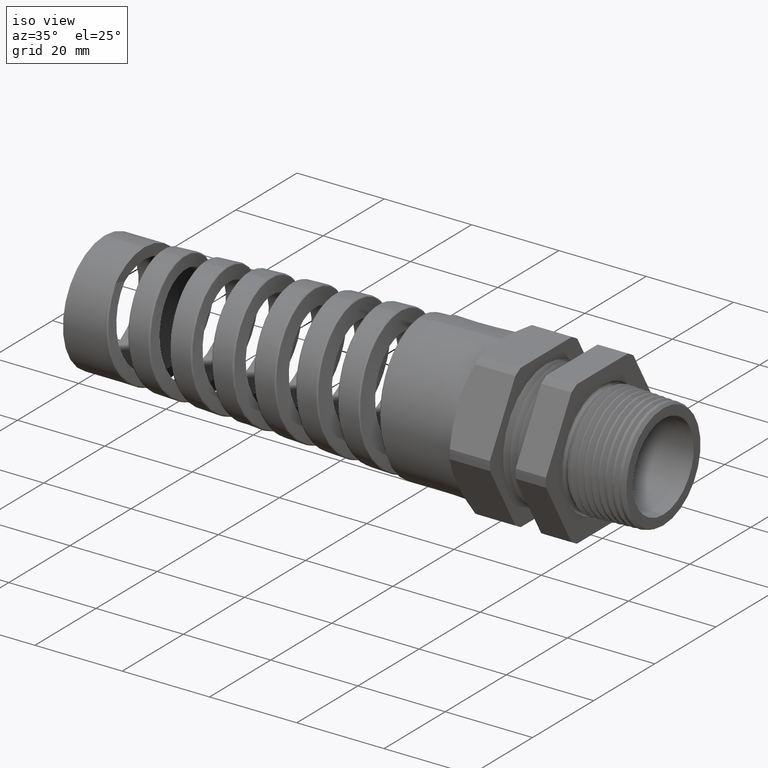
[diagram: clean part render]
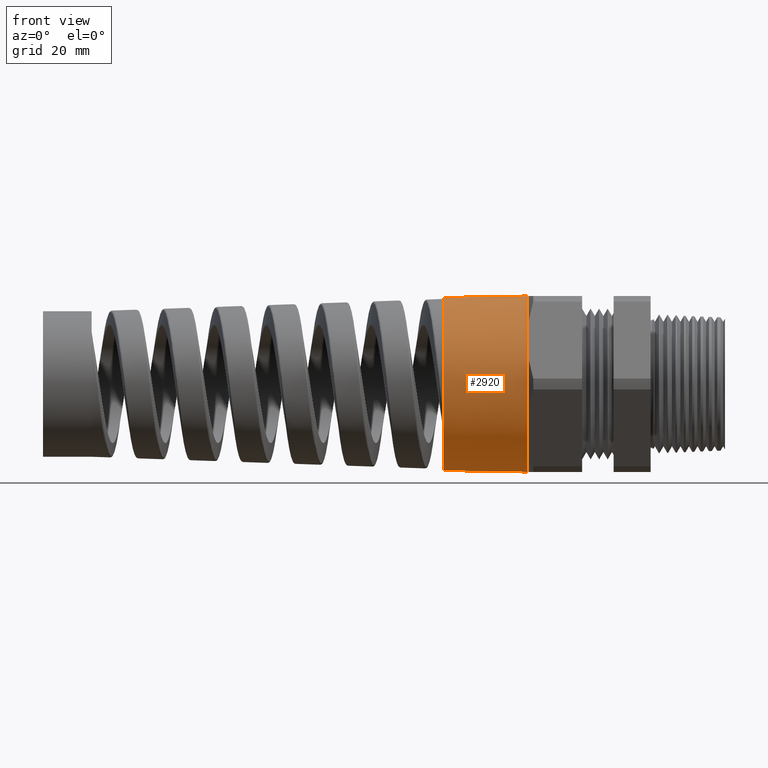
[diagram: tour spotlight — one face highlighted and labeled with its STEP entity id]
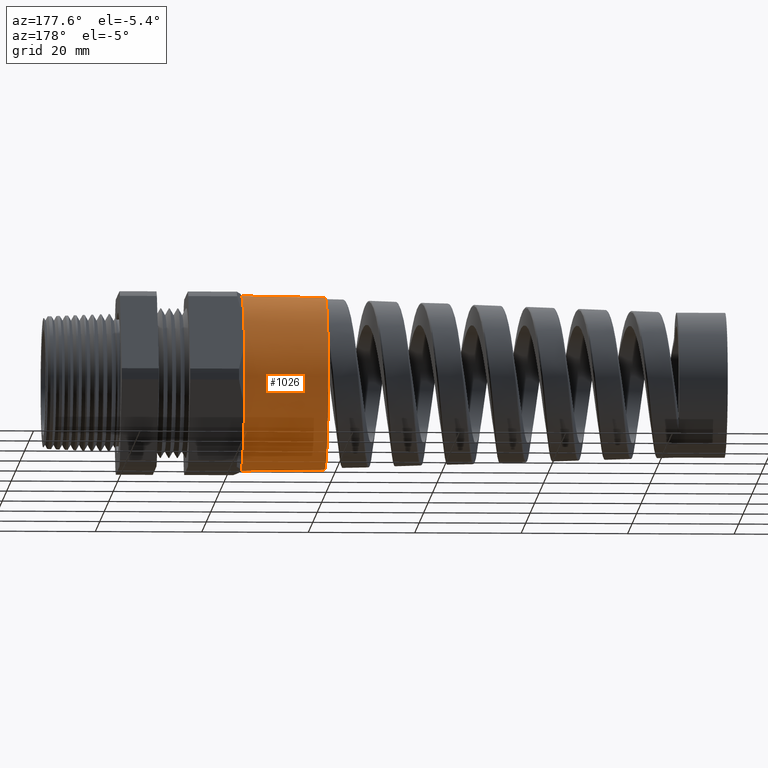
[diagram: tour spotlight — one face highlighted and labeled with its STEP entity id]
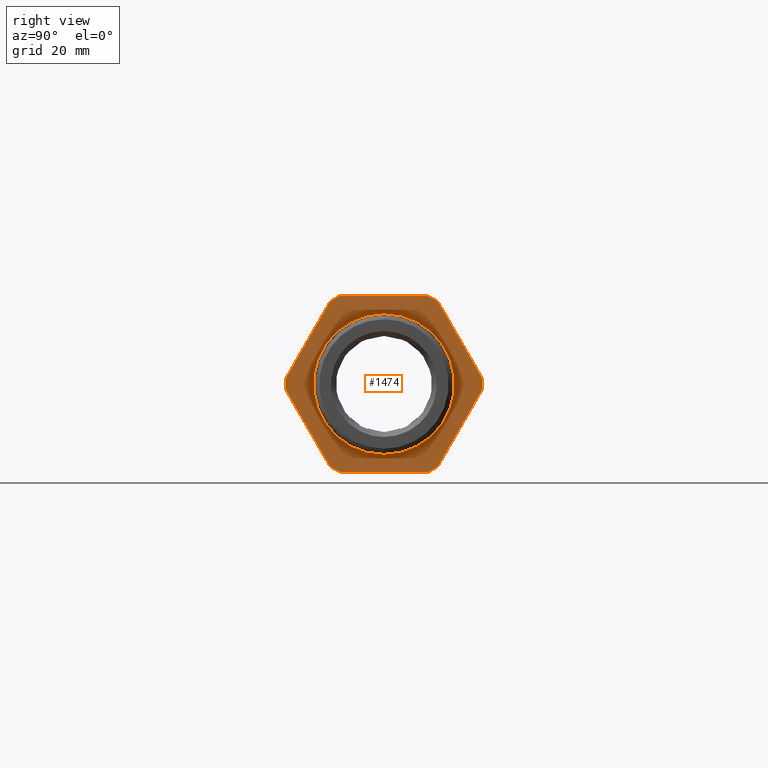
[diagram: tour spotlight — one face highlighted and labeled with its STEP entity id]
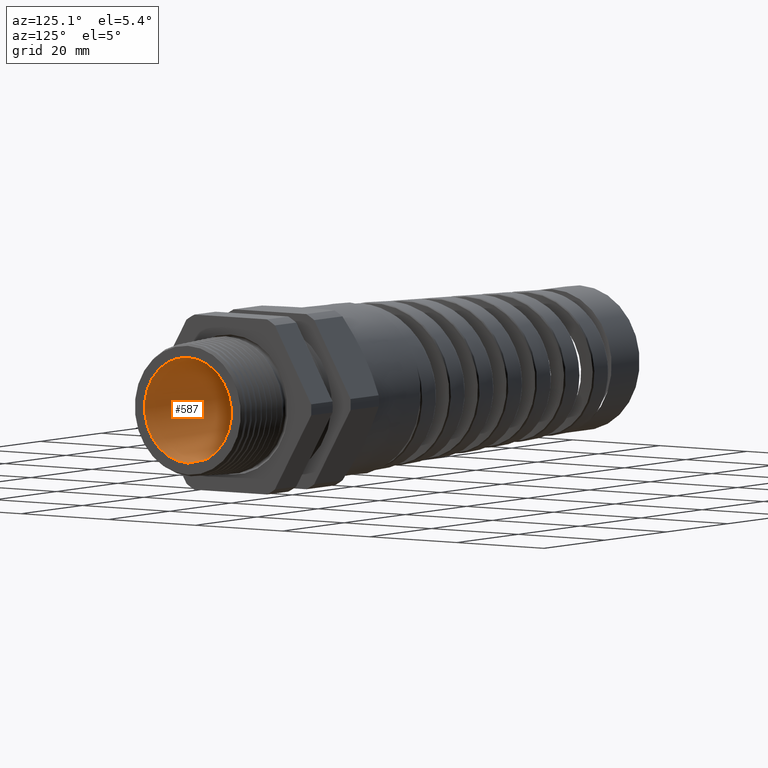
[diagram: tour spotlight — one face highlighted and labeled with its STEP entity id]
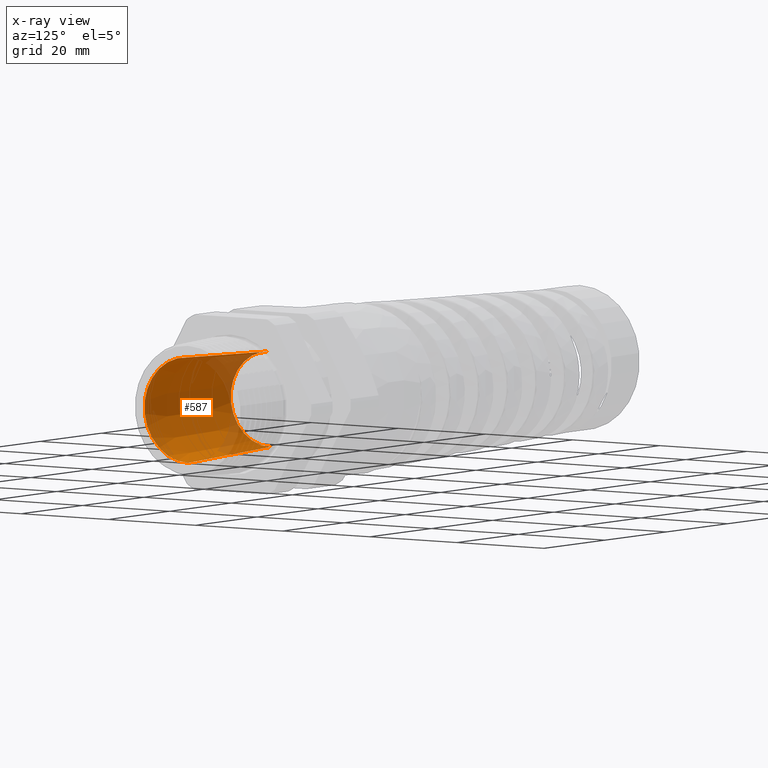
[diagram: x-ray of the same camera — body ghosted, this tour face saturated]
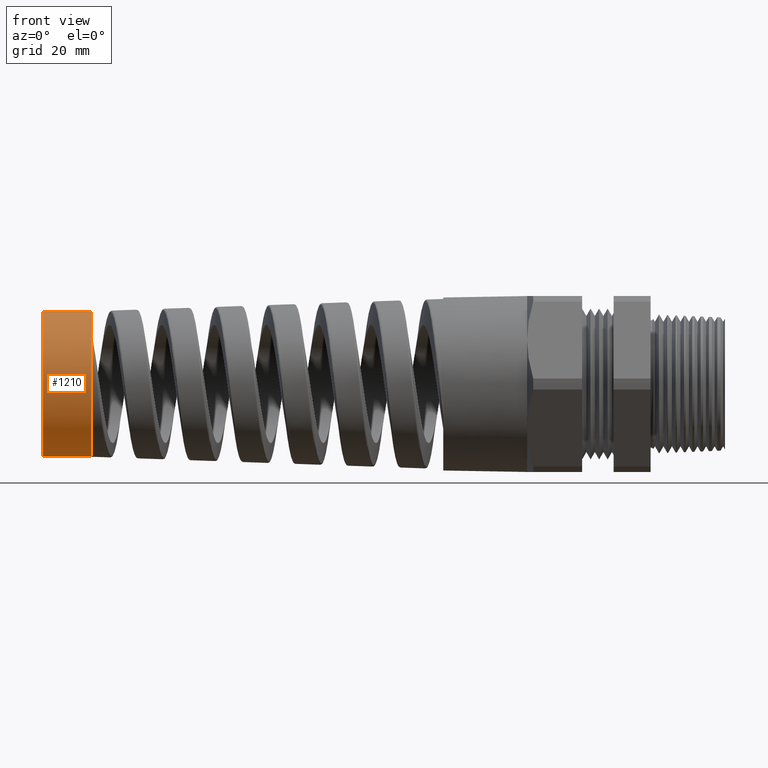
[diagram: tour spotlight — one face highlighted and labeled with its STEP entity id]
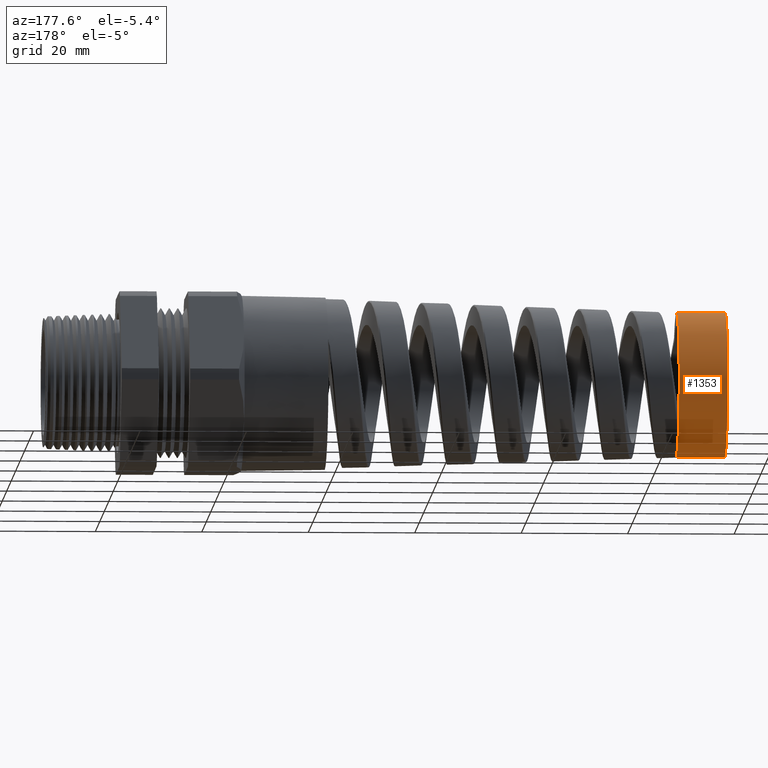
[diagram: tour spotlight — one face highlighted and labeled with its STEP entity id]
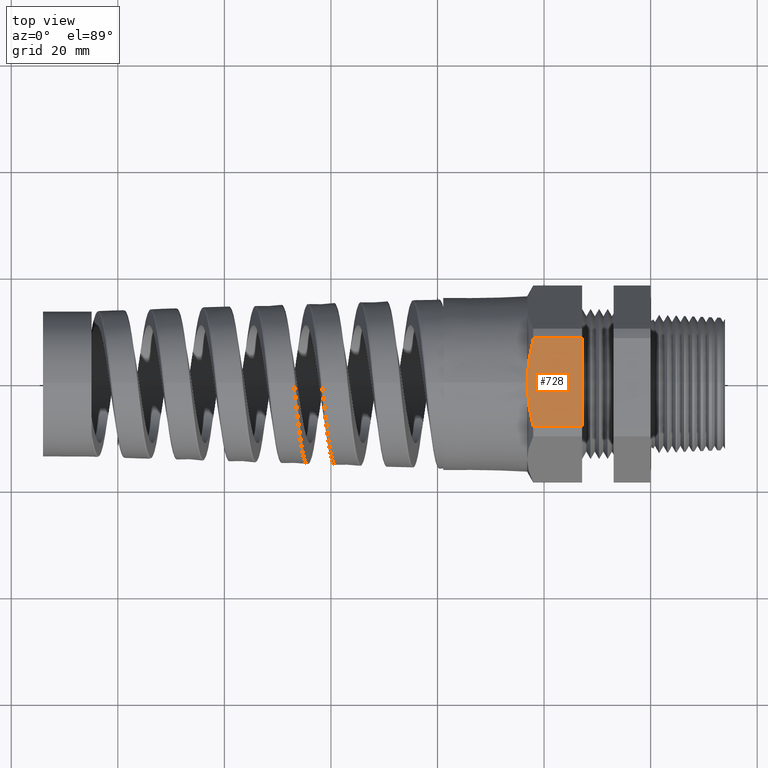
[diagram: tour spotlight — one face highlighted and labeled with its STEP entity id]
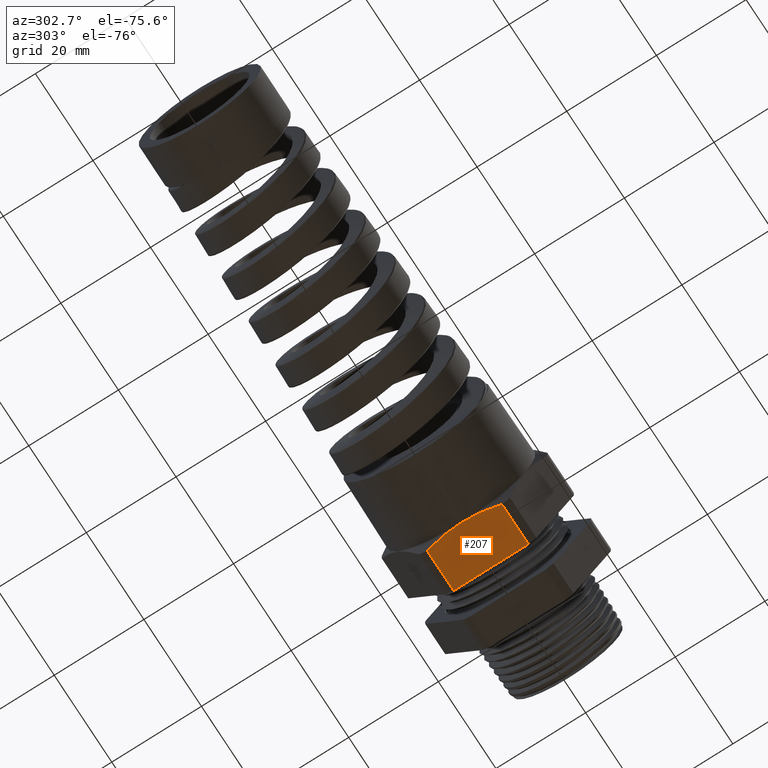
[diagram: tour spotlight — one face highlighted and labeled with its STEP entity id]
A machine part: a face-by-face anatomy tour. The part has 163 B-rep faces; the first image is the clean iso view, then the 8 largest visible faces are spotlighted one at a time (largest first), each with its STEP entity span.

Face 1 — front view, entity #2920. In plain terms, the highlighted conical surface has half-angle 1 deg.
Definition (entity closure, byte-faithful):
#2490 = VERTEX_POINT ( 'NONE', #9889 ) ;
#2615 = VERTEX_POINT ( 'NONE', #9962 ) ;
#2668 = EDGE_LOOP ( 'NONE', ( #2931, #2923, #2912, #2853, #2924, #2911 ) ) ;
#2850 = EDGE_CURVE ( 'NONE', #2615, #2910, #10194, .T. ) ;
#2853 = ORIENTED_EDGE ( 'NONE', *, *, #2928, .T. ) ;
#2855 = VERTEX_POINT ( 'NONE', #10189 ) ;
#2895 = VERTEX_POINT ( 'NONE', #10201 ) ;
#2897 = EDGE_CURVE ( 'NONE', #2910, #2490, #10272, .T. ) ;
#2903 = EDGE_CURVE ( 'NONE', #2855, #2490, #10259, .T. ) ;
#2906 = VERTEX_POINT ( 'NONE', #10254 ) ;
#2910 = VERTEX_POINT ( 'NONE', #10248 ) ;
#2911 = ORIENTED_EDGE ( 'NONE', *, *, #2897, .F. ) ;
#2912 = ORIENTED_EDGE ( 'NONE', *, *, #2916, .T. ) ;
#2916 = EDGE_CURVE ( 'NONE', #2895, #2906, #10246, .T. ) ;
#2920 = ADVANCED_FACE ( 'NONE', ( #10299 ), #10297, .T. ) ;
#2921 = EDGE_CURVE ( 'NONE', #2615, #2895, #10293, .T. ) ;
#2923 = ORIENTED_EDGE ( 'NONE', *, *, #2921, .T. ) ;
#2924 = ORIENTED_EDGE ( 'NONE', *, *, #2903, .T. ) ;
#2928 = EDGE_CURVE ( 'NONE', #2906, #2855, #10333, .T. ) ;
#2931 = ORIENTED_EDGE ( 'NONE', *, *, #2850, .F. ) ;
#9889 = CARTESIAN_POINT ( 'NONE',  ( -0.9125000000000002000, 0.0000000000000000000, 0.6499999999999998000 ) ) ;
#9962 = CARTESIAN_POINT ( 'NONE',  ( -1.532120000000000100, -7.893978312288564000E-017, -0.6391844926691776500 ) ) ;
#10189 = CARTESIAN_POINT ( 'NONE',  ( -0.9125000000000002000, -0.5629165124598850500, 0.3249999999999999600 ) ) ;
#10190 = DIRECTION ( 'NONE',  ( 0.0000000000000000000, 0.0000000000000000000, 1.000000000000000000 ) ) ;
#10191 = DIRECTION ( 'NONE',  ( -1.000000000000000000, 0.0000000000000000000, 0.0000000000000000000 ) ) ;
#10192 = CARTESIAN_POINT ( 'NONE',  ( -1.532120000000000100, 0.0000000000000000000, 0.0000000000000000000 ) ) ;
#10193 = AXIS2_PLACEMENT_3D ( 'NONE', #10192, #10191, #10190 ) ;
#10194 = CIRCLE ( 'NONE', #10193, 0.6391844926691776500 ) ;
#10201 = CARTESIAN_POINT ( 'NONE',  ( -0.9125000000000002000, 0.0000000000000000000, -0.6500000000000000200 ) ) ;
#10243 = DIRECTION ( 'NONE',  ( -1.000000000000000000, 0.0000000000000000000, 0.0000000000000000000 ) ) ;
#10244 = CARTESIAN_POINT ( 'NONE',  ( -0.9125000000000002000, 0.0000000000000000000, 0.0000000000000000000 ) ) ;
#10245 = AXIS2_PLACEMENT_3D ( 'NONE', #10244, #10243, #10305 ) ;
#10246 = CIRCLE ( 'NONE', #10245, 0.6499999999999998000 ) ;
#10248 = CARTESIAN_POINT ( 'NONE',  ( -1.532120000000000100, 0.0000000000000000000, 0.6391844926691776500 ) ) ;
#10254 = CARTESIAN_POINT ( 'NONE',  ( -0.9125000000000002000, -0.5629165124598849400, -0.3250000000000001800 ) ) ;
#10255 = DIRECTION ( 'NONE',  ( 0.0000000000000000000, 0.0000000000000000000, 1.000000000000000000 ) ) ;
#10256 = DIRECTION ( 'NONE',  ( -1.000000000000000000, 0.0000000000000000000, 0.0000000000000000000 ) ) ;
#10257 = CARTESIAN_POINT ( 'NONE',  ( -0.9125000000000002000, 0.0000000000000000000, 0.0000000000000000000 ) ) ;
#10258 = AXIS2_PLACEMENT_3D ( 'NONE', #10257, #10256, #10255 ) ;
#10259 = CIRCLE ( 'NONE', #10258, 0.6499999999999998000 ) ;
#10269 = DIRECTION ( 'NONE',  ( 0.9998476951563912700, 0.0000000000000000000, 0.01745240643728355000 ) ) ;
#10270 = VECTOR ( 'NONE', #10269, 39.37007874015748100 ) ;
#10271 = CARTESIAN_POINT ( 'NONE',  ( -0.9125000000000002000, 0.0000000000000000000, 0.6499999999999999100 ) ) ;
#10272 = LINE ( 'NONE', #10271, #10270 ) ;
#10290 = DIRECTION ( 'NONE',  ( 0.9998476951563912700, -2.137303368083796300E-018, -0.01745240643728355000 ) ) ;
#10291 = VECTOR ( 'NONE', #10290, 39.37007874015748100 ) ;
#10292 = CARTESIAN_POINT ( 'NONE',  ( -0.9125000000000002000, -7.960204194457794200E-017, -0.6499999999999999100 ) ) ;
#10293 = LINE ( 'NONE', #10292, #10291 ) ;
#10294 = DIRECTION ( 'NONE',  ( 0.0000000000000000000, 0.0000000000000000000, 1.000000000000000000 ) ) ;
#10295 = DIRECTION ( 'NONE',  ( 1.000000000000000000, 0.0000000000000000000, 0.0000000000000000000 ) ) ;
#10296 = AXIS2_PLACEMENT_3D ( 'NONE', #10298, #10295, #10294 ) ;
#10297 = CONICAL_SURFACE ( 'NONE', #10296, 0.6499999999999999100, 0.01745329251994333400 ) ;
#10298 = CARTESIAN_POINT ( 'NONE',  ( -0.9125000000000002000, 0.0000000000000000000, 0.0000000000000000000 ) ) ;
#10299 = FACE_OUTER_BOUND ( 'NONE', #2668, .T. ) ;
#10305 = DIRECTION ( 'NONE',  ( 0.0000000000000000000, 0.0000000000000000000, 1.000000000000000000 ) ) ;
#10329 = DIRECTION ( 'NONE',  ( 0.0000000000000000000, 0.0000000000000000000, 1.000000000000000000 ) ) ;
#10330 = DIRECTION ( 'NONE',  ( -1.000000000000000000, 0.0000000000000000000, 0.0000000000000000000 ) ) ;
#10331 = CARTESIAN_POINT ( 'NONE',  ( -0.9125000000000002000, 0.0000000000000000000, 0.0000000000000000000 ) ) ;
#10332 = AXIS2_PLACEMENT_3D ( 'NONE', #10331, #10330, #10329 ) ;
#10333 = CIRCLE ( 'NONE', #10332, 0.6499999999999998000 ) ;

Face 2 — auxiliary view, entity #1026. In plain terms, the highlighted conical surface has half-angle 1 deg.
Definition (entity closure, byte-faithful):
#196 = EDGE_CURVE ( 'NONE', #2910, #2615, #1749, .T. ) ;
#772 = VERTEX_POINT ( 'NONE', #2316 ) ;
#1009 = ORIENTED_EDGE ( 'NONE', *, *, #196, .F. ) ;
#1011 = ORIENTED_EDGE ( 'NONE', *, *, #2921, .F. ) ;
#1016 = ORIENTED_EDGE ( 'NONE', *, *, #1636, .T. ) ;
#1022 = ORIENTED_EDGE ( 'NONE', *, *, #2897, .T. ) ;
#1023 = ORIENTED_EDGE ( 'NONE', *, *, #1262, .T. ) ;
#1024 = ORIENTED_EDGE ( 'NONE', *, *, #1271, .T. ) ;
#1025 = EDGE_LOOP ( 'NONE', ( #1011, #1009, #1022, #1023, #1024, #1016 ) ) ;
#1026 = ADVANCED_FACE ( 'NONE', ( #3773 ), #3826, .T. ) ;
#1262 = EDGE_CURVE ( 'NONE', #2490, #13829, #9331, .T. ) ;
#1271 = EDGE_CURVE ( 'NONE', #13829, #772, #9317, .T. ) ;
#1636 = EDGE_CURVE ( 'NONE', #772, #2895, #9625, .T. ) ;
#1745 = DIRECTION ( 'NONE',  ( 0.0000000000000000000, 0.0000000000000000000, 1.000000000000000000 ) ) ;
#1746 = DIRECTION ( 'NONE',  ( -1.000000000000000000, 0.0000000000000000000, 0.0000000000000000000 ) ) ;
#1747 = CARTESIAN_POINT ( 'NONE',  ( -1.532120000000000100, 0.0000000000000000000, 0.0000000000000000000 ) ) ;
#1748 = AXIS2_PLACEMENT_3D ( 'NONE', #1747, #1746, #1745 ) ;
#1749 = CIRCLE ( 'NONE', #1748, 0.6391844926691776500 ) ;
#2316 = CARTESIAN_POINT ( 'NONE',  ( -0.9125000000000002000, 0.5629165124598850500, -0.3250000000000000100 ) ) ;
#2490 = VERTEX_POINT ( 'NONE', #9889 ) ;
#2615 = VERTEX_POINT ( 'NONE', #9962 ) ;
#2895 = VERTEX_POINT ( 'NONE', #10201 ) ;
#2897 = EDGE_CURVE ( 'NONE', #2910, #2490, #10272, .T. ) ;
#2910 = VERTEX_POINT ( 'NONE', #10248 ) ;
#2921 = EDGE_CURVE ( 'NONE', #2615, #2895, #10293, .T. ) ;
#3773 = FACE_OUTER_BOUND ( 'NONE', #1025, .T. ) ;
#3822 = DIRECTION ( 'NONE',  ( 0.0000000000000000000, 0.0000000000000000000, 1.000000000000000000 ) ) ;
#3823 = DIRECTION ( 'NONE',  ( 1.000000000000000000, 0.0000000000000000000, 0.0000000000000000000 ) ) ;
#3824 = CARTESIAN_POINT ( 'NONE',  ( -0.9125000000000002000, 0.0000000000000000000, 0.0000000000000000000 ) ) ;
#3825 = AXIS2_PLACEMENT_3D ( 'NONE', #3824, #3823, #3822 ) ;
#3826 = CONICAL_SURFACE ( 'NONE', #3825, 0.6499999999999999100, 0.01745329251994333400 ) ;
#9249 = CARTESIAN_POINT ( 'NONE',  ( -0.9125000000000002000, 0.0000000000000000000, 0.0000000000000000000 ) ) ;
#9313 = DIRECTION ( 'NONE',  ( 0.0000000000000000000, 0.0000000000000000000, 1.000000000000000000 ) ) ;
#9314 = DIRECTION ( 'NONE',  ( -1.000000000000000000, 0.0000000000000000000, 0.0000000000000000000 ) ) ;
#9315 = CARTESIAN_POINT ( 'NONE',  ( -0.9125000000000002000, 0.0000000000000000000, 0.0000000000000000000 ) ) ;
#9316 = AXIS2_PLACEMENT_3D ( 'NONE', #9315, #9314, #9313 ) ;
#9317 = CIRCLE ( 'NONE', #9316, 0.6499999999999998000 ) ;
#9327 = DIRECTION ( 'NONE',  ( 0.0000000000000000000, 0.0000000000000000000, 1.000000000000000000 ) ) ;
#9328 = DIRECTION ( 'NONE',  ( -1.000000000000000000, 0.0000000000000000000, 0.0000000000000000000 ) ) ;
#9329 = AXIS2_PLACEMENT_3D ( 'NONE', #9249, #9328, #9327 ) ;
#9331 = CIRCLE ( 'NONE', #9329, 0.6499999999999998000 ) ;
#9622 = DIRECTION ( 'NONE',  ( -1.000000000000000000, 0.0000000000000000000, 0.0000000000000000000 ) ) ;
#9624 = AXIS2_PLACEMENT_3D ( 'NONE', #9635, #9622, #9751 ) ;
#9625 = CIRCLE ( 'NONE', #9624, 0.6499999999999998000 ) ;
#9635 = CARTESIAN_POINT ( 'NONE',  ( -0.9125000000000002000, 0.0000000000000000000, 0.0000000000000000000 ) ) ;
#9751 = DIRECTION ( 'NONE',  ( 0.0000000000000000000, 0.0000000000000000000, 1.000000000000000000 ) ) ;
#9889 = CARTESIAN_POINT ( 'NONE',  ( -0.9125000000000002000, 0.0000000000000000000, 0.6499999999999998000 ) ) ;
#9962 = CARTESIAN_POINT ( 'NONE',  ( -1.532120000000000100, -7.893978312288564000E-017, -0.6391844926691776500 ) ) ;
#10201 = CARTESIAN_POINT ( 'NONE',  ( -0.9125000000000002000, 0.0000000000000000000, -0.6500000000000000200 ) ) ;
#10248 = CARTESIAN_POINT ( 'NONE',  ( -1.532120000000000100, 0.0000000000000000000, 0.6391844926691776500 ) ) ;
#10269 = DIRECTION ( 'NONE',  ( 0.9998476951563912700, 0.0000000000000000000, 0.01745240643728355000 ) ) ;
#10270 = VECTOR ( 'NONE', #10269, 39.37007874015748100 ) ;
#10271 = CARTESIAN_POINT ( 'NONE',  ( -0.9125000000000002000, 0.0000000000000000000, 0.6499999999999999100 ) ) ;
#10272 = LINE ( 'NONE', #10271, #10270 ) ;
#10290 = DIRECTION ( 'NONE',  ( 0.9998476951563912700, -2.137303368083796300E-018, -0.01745240643728355000 ) ) ;
#10291 = VECTOR ( 'NONE', #10290, 39.37007874015748100 ) ;
#10292 = CARTESIAN_POINT ( 'NONE',  ( -0.9125000000000002000, -7.960204194457794200E-017, -0.6499999999999999100 ) ) ;
#10293 = LINE ( 'NONE', #10292, #10291 ) ;
#13227 = CARTESIAN_POINT ( 'NONE',  ( -0.9125000000000002000, 0.5629165124598849400, 0.3250000000000001800 ) ) ;
#13829 = VERTEX_POINT ( 'NONE', #13227 ) ;

Face 3 — right view, entity #1474. In plain terms, the highlighted planar face has unit normal (-1, 0, 0).
Definition (entity closure, byte-faithful):
#1474 = ADVANCED_FACE ( 'NONE', ( #9604, #9602 ), #9599, .F. ) ;
#1475 = EDGE_LOOP ( 'NONE', ( #1476, #1535, #1538, #1541, #1544, #1547, #1521, #1524, #1527, #1530, #1533, #1508 ) ) ;
#1476 = ORIENTED_EDGE ( 'NONE', *, *, #1477, .T. ) ;
#1477 = EDGE_CURVE ( 'NONE', #1478, #1534, #9588, .T. ) ;
#1478 = VERTEX_POINT ( 'NONE', #9582 ) ;
#1507 = VERTEX_POINT ( 'NONE', #9737 ) ;
#1508 = ORIENTED_EDGE ( 'NONE', *, *, #1509, .F. ) ;
#1509 = EDGE_CURVE ( 'NONE', #1478, #1507, #9733, .T. ) ;
#1510 = EDGE_LOOP ( 'NONE', ( #1511, #1513 ) ) ;
#1511 = ORIENTED_EDGE ( 'NONE', *, *, #1512, .F. ) ;
#1512 = EDGE_CURVE ( 'NONE', #2894, #2857, #9724, .T. ) ;
#1513 = ORIENTED_EDGE ( 'NONE', *, *, #2904, .F. ) ;
#1519 = EDGE_CURVE ( 'NONE', #1520, #1546, #9693, .T. ) ;
#1520 = VERTEX_POINT ( 'NONE', #9686 ) ;
#1521 = ORIENTED_EDGE ( 'NONE', *, *, #1522, .T. ) ;
#1522 = EDGE_CURVE ( 'NONE', #1520, #1523, #9808, .T. ) ;
#1523 = VERTEX_POINT ( 'NONE', #9803 ) ;
#1524 = ORIENTED_EDGE ( 'NONE', *, *, #1525, .F. ) ;
#1525 = EDGE_CURVE ( 'NONE', #1526, #1523, #9798, .T. ) ;
#1526 = VERTEX_POINT ( 'NONE', #9789 ) ;
#1527 = ORIENTED_EDGE ( 'NONE', *, *, #1528, .T. ) ;
#1528 = EDGE_CURVE ( 'NONE', #1526, #1529, #9785, .T. ) ;
#1529 = VERTEX_POINT ( 'NONE', #9780 ) ;
#1530 = ORIENTED_EDGE ( 'NONE', *, *, #1531, .F. ) ;
#1531 = EDGE_CURVE ( 'NONE', #1532, #1529, #9774, .T. ) ;
#1532 = VERTEX_POINT ( 'NONE', #9765 ) ;
#1533 = ORIENTED_EDGE ( 'NONE', *, *, #1587, .T. ) ;
#1534 = VERTEX_POINT ( 'NONE', #9763 ) ;
#1535 = ORIENTED_EDGE ( 'NONE', *, *, #1536, .F. ) ;
#1536 = EDGE_CURVE ( 'NONE', #1537, #1534, #9758, .T. ) ;
#1537 = VERTEX_POINT ( 'NONE', #9752 ) ;
#1538 = ORIENTED_EDGE ( 'NONE', *, *, #1539, .T. ) ;
#1539 = EDGE_CURVE ( 'NONE', #1537, #1540, #9748, .T. ) ;
#1540 = VERTEX_POINT ( 'NONE', #9871 ) ;
#1541 = ORIENTED_EDGE ( 'NONE', *, *, #1542, .F. ) ;
#1542 = EDGE_CURVE ( 'NONE', #1543, #1540, #9867, .T. ) ;
#1543 = VERTEX_POINT ( 'NONE', #9860 ) ;
#1544 = ORIENTED_EDGE ( 'NONE', *, *, #1545, .T. ) ;
#1545 = EDGE_CURVE ( 'NONE', #1543, #1546, #9854, .T. ) ;
#1546 = VERTEX_POINT ( 'NONE', #9850 ) ;
#1547 = ORIENTED_EDGE ( 'NONE', *, *, #1519, .F. ) ;
#1587 = EDGE_CURVE ( 'NONE', #1532, #1507, #9556, .T. ) ;
#2857 = VERTEX_POINT ( 'NONE', #10211 ) ;
#2894 = VERTEX_POINT ( 'NONE', #10202 ) ;
#2904 = EDGE_CURVE ( 'NONE', #2857, #2894, #10253, .T. ) ;
#9551 = DIRECTION ( 'NONE',  ( 0.0000000000000000000, -0.5000000000000000000, -0.8660254037844386000 ) ) ;
#9553 = VECTOR ( 'NONE', #9551, 39.37007874015748900 ) ;
#9554 = CARTESIAN_POINT ( 'NONE',  ( 0.0000000000000000000, -0.3989927496919439800, 0.6089242856819407900 ) ) ;
#9556 = LINE ( 'NONE', #9554, #9553 ) ;
#9582 = CARTESIAN_POINT ( 'NONE',  ( 0.0000000000000000000, -0.7268402752278255700, -0.04107571431805972400 ) ) ;
#9584 = DIRECTION ( 'NONE',  ( 0.0000000000000000000, 0.5000000000000003300, -0.8660254037844383700 ) ) ;
#9585 = VECTOR ( 'NONE', #9584, 39.37007874015748100 ) ;
#9587 = CARTESIAN_POINT ( 'NONE',  ( 0.0000000000000000000, -0.7268402752278255700, -0.04107571431805972400 ) ) ;
#9588 = LINE ( 'NONE', #9587, #9585 ) ;
#9594 = DIRECTION ( 'NONE',  ( 0.0000000000000000000, 0.0000000000000000000, 1.000000000000000000 ) ) ;
#9596 = DIRECTION ( 'NONE',  ( -1.000000000000000000, 0.0000000000000000000, 0.0000000000000000000 ) ) ;
#9597 = CARTESIAN_POINT ( 'NONE',  ( 0.0000000000000000000, 0.7280000000000000900, 0.0000000000000000000 ) ) ;
#9598 = AXIS2_PLACEMENT_3D ( 'NONE', #9597, #9596, #9594 ) ;
#9599 = PLANE ( 'NONE',  #9598 ) ;
#9602 = FACE_BOUND ( 'NONE', #1510, .T. ) ;
#9604 = FACE_OUTER_BOUND ( 'NONE', #1475, .T. ) ;
#9686 = CARTESIAN_POINT ( 'NONE',  ( 0.0000000000000000000, 0.7268402752278255700, 0.04107571431805956400 ) ) ;
#9687 = DIRECTION ( 'NONE',  ( 0.0000000000000000000, 0.0000000000000000000, 1.000000000000000000 ) ) ;
#9689 = DIRECTION ( 'NONE',  ( -1.000000000000000000, 0.0000000000000000000, 0.0000000000000000000 ) ) ;
#9691 = CARTESIAN_POINT ( 'NONE',  ( 0.0000000000000000000, 0.0000000000000000000, 0.0000000000000000000 ) ) ;
#9692 = AXIS2_PLACEMENT_3D ( 'NONE', #9691, #9689, #9687 ) ;
#9693 = CIRCLE ( 'NONE', #9692, 0.7280000000000000900 ) ;
#9717 = DIRECTION ( 'NONE',  ( 0.0000000000000000000, 0.0000000000000000000, 1.000000000000000000 ) ) ;
#9720 = DIRECTION ( 'NONE',  ( 1.000000000000000000, 0.0000000000000000000, 0.0000000000000000000 ) ) ;
#9722 = AXIS2_PLACEMENT_3D ( 'NONE', #9735, #9720, #9717 ) ;
#9724 = CIRCLE ( 'NONE', #9722, 0.5199999999999999100 ) ;
#9726 = DIRECTION ( 'NONE',  ( 0.0000000000000000000, 0.0000000000000000000, 1.000000000000000000 ) ) ;
#9728 = DIRECTION ( 'NONE',  ( -1.000000000000000000, 0.0000000000000000000, 0.0000000000000000000 ) ) ;
#9730 = CARTESIAN_POINT ( 'NONE',  ( 0.0000000000000000000, 0.0000000000000000000, 0.0000000000000000000 ) ) ;
#9731 = AXIS2_PLACEMENT_3D ( 'NONE', #9730, #9728, #9726 ) ;
#9733 = CIRCLE ( 'NONE', #9731, 0.7280000000000000900 ) ;
#9735 = CARTESIAN_POINT ( 'NONE',  ( 0.0000000000000000000, 0.0000000000000000000, 0.0000000000000000000 ) ) ;
#9737 = CARTESIAN_POINT ( 'NONE',  ( 0.0000000000000000000, -0.7268402752278255700, 0.04107571431805911300 ) ) ;
#9747 = CARTESIAN_POINT ( 'NONE',  ( 0.0000000000000000000, -0.3278475255358810900, -0.6500000000000000200 ) ) ;
#9748 = LINE ( 'NONE', #9747, #9874 ) ;
#9752 = CARTESIAN_POINT ( 'NONE',  ( 0.0000000000000000000, -0.3278475255358812000, -0.6499999999999999100 ) ) ;
#9753 = DIRECTION ( 'NONE',  ( 0.0000000000000000000, 0.0000000000000000000, 1.000000000000000000 ) ) ;
#9755 = DIRECTION ( 'NONE',  ( -1.000000000000000000, 0.0000000000000000000, 0.0000000000000000000 ) ) ;
#9756 = CARTESIAN_POINT ( 'NONE',  ( 0.0000000000000000000, 0.0000000000000000000, 0.0000000000000000000 ) ) ;
#9757 = AXIS2_PLACEMENT_3D ( 'NONE', #9756, #9755, #9753 ) ;
#9758 = CIRCLE ( 'NONE', #9757, 0.7280000000000000900 ) ;
#9763 = CARTESIAN_POINT ( 'NONE',  ( 0.0000000000000000000, -0.3989927496919442600, -0.6089242856819405700 ) ) ;
#9765 = CARTESIAN_POINT ( 'NONE',  ( 0.0000000000000000000, -0.3989927496919437600, 0.6089242856819410100 ) ) ;
#9767 = DIRECTION ( 'NONE',  ( 0.0000000000000000000, 0.0000000000000000000, 1.000000000000000000 ) ) ;
#9769 = DIRECTION ( 'NONE',  ( -1.000000000000000000, 0.0000000000000000000, 0.0000000000000000000 ) ) ;
#9771 = CARTESIAN_POINT ( 'NONE',  ( 0.0000000000000000000, 0.0000000000000000000, 0.0000000000000000000 ) ) ;
#9772 = AXIS2_PLACEMENT_3D ( 'NONE', #9771, #9769, #9767 ) ;
#9774 = CIRCLE ( 'NONE', #9772, 0.7280000000000000900 ) ;
#9780 = CARTESIAN_POINT ( 'NONE',  ( 0.0000000000000000000, -0.3278475255358813700, 0.6499999999999999100 ) ) ;
#9782 = DIRECTION ( 'NONE',  ( 0.0000000000000000000, -1.000000000000000000, 0.0000000000000000000 ) ) ;
#9783 = VECTOR ( 'NONE', #9782, 39.37007874015748100 ) ;
#9784 = CARTESIAN_POINT ( 'NONE',  ( 0.0000000000000000000, 0.3278475255358813700, 0.6499999999999999100 ) ) ;
#9785 = LINE ( 'NONE', #9784, #9783 ) ;
#9789 = CARTESIAN_POINT ( 'NONE',  ( 0.0000000000000000000, 0.3278475255358814200, 0.6499999999999998000 ) ) ;
#9792 = DIRECTION ( 'NONE',  ( 0.0000000000000000000, 0.0000000000000000000, 1.000000000000000000 ) ) ;
#9794 = DIRECTION ( 'NONE',  ( -1.000000000000000000, 0.0000000000000000000, 0.0000000000000000000 ) ) ;
#9796 = CARTESIAN_POINT ( 'NONE',  ( 0.0000000000000000000, 0.0000000000000000000, 0.0000000000000000000 ) ) ;
#9797 = AXIS2_PLACEMENT_3D ( 'NONE', #9796, #9794, #9792 ) ;
#9798 = CIRCLE ( 'NONE', #9797, 0.7280000000000000900 ) ;
#9803 = CARTESIAN_POINT ( 'NONE',  ( 0.0000000000000000000, 0.3989927496919443200, 0.6089242856819405700 ) ) ;
#9805 = DIRECTION ( 'NONE',  ( 0.0000000000000000000, -0.5000000000000003300, 0.8660254037844383700 ) ) ;
#9806 = VECTOR ( 'NONE', #9805, 39.37007874015748100 ) ;
#9807 = CARTESIAN_POINT ( 'NONE',  ( 0.0000000000000000000, 0.7268402752278256800, 0.04107571431805962700 ) ) ;
#9808 = LINE ( 'NONE', #9807, #9806 ) ;
#9850 = CARTESIAN_POINT ( 'NONE',  ( 0.0000000000000000000, 0.7268402752278256800, -0.04107571431805931400 ) ) ;
#9851 = DIRECTION ( 'NONE',  ( 0.0000000000000000000, 0.5000000000000001100, 0.8660254037844386000 ) ) ;
#9852 = VECTOR ( 'NONE', #9851, 39.37007874015748100 ) ;
#9853 = CARTESIAN_POINT ( 'NONE',  ( 0.0000000000000000000, 0.3989927496919443200, -0.6089242856819405700 ) ) ;
#9854 = LINE ( 'NONE', #9853, #9852 ) ;
#9860 = CARTESIAN_POINT ( 'NONE',  ( 0.0000000000000000000, 0.3989927496919443200, -0.6089242856819405700 ) ) ;
#9862 = DIRECTION ( 'NONE',  ( 0.0000000000000000000, 0.0000000000000000000, 1.000000000000000000 ) ) ;
#9863 = DIRECTION ( 'NONE',  ( -1.000000000000000000, 0.0000000000000000000, 0.0000000000000000000 ) ) ;
#9864 = CARTESIAN_POINT ( 'NONE',  ( 0.0000000000000000000, 0.0000000000000000000, 0.0000000000000000000 ) ) ;
#9865 = AXIS2_PLACEMENT_3D ( 'NONE', #9864, #9863, #9862 ) ;
#9867 = CIRCLE ( 'NONE', #9865, 0.7280000000000000900 ) ;
#9871 = CARTESIAN_POINT ( 'NONE',  ( 0.0000000000000000000, 0.3278475255358810900, -0.6500000000000000200 ) ) ;
#9872 = DIRECTION ( 'NONE',  ( 0.0000000000000000000, 1.000000000000000000, 0.0000000000000000000 ) ) ;
#9874 = VECTOR ( 'NONE', #9872, 39.37007874015748100 ) ;
#10202 = CARTESIAN_POINT ( 'NONE',  ( 0.0000000000000000000, 0.0000000000000000000, -0.5199999999999999100 ) ) ;
#10211 = CARTESIAN_POINT ( 'NONE',  ( 0.0000000000000000000, 6.368163355566234900E-017, 0.5199999999999999100 ) ) ;
#10249 = DIRECTION ( 'NONE',  ( 0.0000000000000000000, 0.0000000000000000000, 1.000000000000000000 ) ) ;
#10250 = DIRECTION ( 'NONE',  ( 1.000000000000000000, 0.0000000000000000000, 0.0000000000000000000 ) ) ;
#10251 = CARTESIAN_POINT ( 'NONE',  ( 0.0000000000000000000, 0.0000000000000000000, 0.0000000000000000000 ) ) ;
#10252 = AXIS2_PLACEMENT_3D ( 'NONE', #10251, #10250, #10249 ) ;
#10253 = CIRCLE ( 'NONE', #10252, 0.5199999999999999100 ) ;

Face 4 — auxiliary view, entity #587. An x-ray twin of the same camera follows (body ghosted, this face saturated) — the face is partly hidden behind the body. In plain terms, the highlighted conical surface has half-angle 2 deg.
Definition (entity closure, byte-faithful):
#509 = ORIENTED_EDGE ( 'NONE', *, *, #510, .F. ) ;
#510 = EDGE_CURVE ( 'NONE', #537, #538, #1850, .T. ) ;
#524 = ORIENTED_EDGE ( 'NONE', *, *, #540, .T. ) ;
#525 = VERTEX_POINT ( 'NONE', #1823 ) ;
#529 = VERTEX_POINT ( 'NONE', #1822 ) ;
#537 = VERTEX_POINT ( 'NONE', #1864 ) ;
#538 = VERTEX_POINT ( 'NONE', #1863 ) ;
#540 = EDGE_CURVE ( 'NONE', #537, #525, #1861, .T. ) ;
#543 = EDGE_CURVE ( 'NONE', #538, #529, #1856, .T. ) ;
#544 = ORIENTED_EDGE ( 'NONE', *, *, #545, .T. ) ;
#545 = EDGE_CURVE ( 'NONE', #525, #529, #1852, .T. ) ;
#546 = ORIENTED_EDGE ( 'NONE', *, *, #543, .F. ) ;
#548 = EDGE_LOOP ( 'NONE', ( #524, #544, #546, #509 ) ) ;
#587 = ADVANCED_FACE ( 'NONE', ( #1897 ), #1896, .F. ) ;
#1822 = CARTESIAN_POINT ( 'NONE',  ( 0.5500000000000001600, 4.799029687582950000E-017, 0.3918705124550377300 ) ) ;
#1823 = CARTESIAN_POINT ( 'NONE',  ( -0.5058333333333334700, 0.0000000000000000000, 0.3549999999999999800 ) ) ;
#1847 = DIRECTION ( 'NONE',  ( 0.9993908270190957600, 0.0000000000000000000, -0.03489949670250171200 ) ) ;
#1848 = VECTOR ( 'NONE', #1847, 39.37007874015748900 ) ;
#1849 = CARTESIAN_POINT ( 'NONE',  ( -0.5058333333333334700, 0.0000000000000000000, -0.3549999999999999800 ) ) ;
#1850 = LINE ( 'NONE', #1849, #1848 ) ;
#1852 = LINE ( 'NONE', #1917, #1916 ) ;
#1853 = DIRECTION ( 'NONE',  ( 0.0000000000000000000, 0.0000000000000000000, 1.000000000000000000 ) ) ;
#1854 = DIRECTION ( 'NONE',  ( -1.000000000000000000, 0.0000000000000000000, 0.0000000000000000000 ) ) ;
#1855 = AXIS2_PLACEMENT_3D ( 'NONE', #1862, #1854, #1853 ) ;
#1856 = CIRCLE ( 'NONE', #1855, 0.3918705124550377300 ) ;
#1857 = DIRECTION ( 'NONE',  ( 0.0000000000000000000, 0.0000000000000000000, 1.000000000000000000 ) ) ;
#1858 = DIRECTION ( 'NONE',  ( -1.000000000000000000, 0.0000000000000000000, 0.0000000000000000000 ) ) ;
#1859 = CARTESIAN_POINT ( 'NONE',  ( -0.5058333333333334700, 0.0000000000000000000, 0.0000000000000000000 ) ) ;
#1860 = AXIS2_PLACEMENT_3D ( 'NONE', #1859, #1858, #1857 ) ;
#1861 = CIRCLE ( 'NONE', #1860, 0.3549999999999999800 ) ;
#1862 = CARTESIAN_POINT ( 'NONE',  ( 0.5500000000000001600, 0.0000000000000000000, 0.0000000000000000000 ) ) ;
#1863 = CARTESIAN_POINT ( 'NONE',  ( 0.5500000000000001600, 0.0000000000000000000, -0.3918705124550377300 ) ) ;
#1864 = CARTESIAN_POINT ( 'NONE',  ( -0.5058333333333334700, 4.347496136973103500E-017, -0.3549999999999999800 ) ) ;
#1891 = DIRECTION ( 'NONE',  ( 0.0000000000000000000, 0.0000000000000000000, -1.000000000000000000 ) ) ;
#1892 = DIRECTION ( 'NONE',  ( 1.000000000000000000, 0.0000000000000000000, 0.0000000000000000000 ) ) ;
#1893 = CARTESIAN_POINT ( 'NONE',  ( -0.5058333333333334700, 0.0000000000000000000, 0.0000000000000000000 ) ) ;
#1894 = AXIS2_PLACEMENT_3D ( 'NONE', #1893, #1892, #1891 ) ;
#1896 = CONICAL_SURFACE ( 'NONE', #1894, 0.3549999999999999800, 0.03490658503988733300 ) ;
#1897 = FACE_OUTER_BOUND ( 'NONE', #548, .T. ) ;
#1915 = DIRECTION ( 'NONE',  ( 0.9993908270190957600, 4.273955692857232700E-018, 0.03489949670250171200 ) ) ;
#1916 = VECTOR ( 'NONE', #1915, 39.37007874015748900 ) ;
#1917 = CARTESIAN_POINT ( 'NONE',  ( -0.5058333333333334700, 4.347496136973103500E-017, 0.3549999999999999800 ) ) ;

Face 5 — front view, entity #1210. In plain terms, the highlighted cylindrical surface (partial cylindrical patch) has radius 13.6545 mm, axis along (1, 0, 0).
Definition (entity closure, byte-faithful):
#1097 = EDGE_LOOP ( 'NONE', ( #1191, #1203, #1197, #1217, #1218 ) ) ;
#1181 = EDGE_CURVE ( 'NONE', #13529, #1359, #5282, .T. ) ;
#1191 = ORIENTED_EDGE ( 'NONE', *, *, #1414, .F. ) ;
#1197 = ORIENTED_EDGE ( 'NONE', *, *, #1347, .T. ) ;
#1203 = ORIENTED_EDGE ( 'NONE', *, *, #1213, .F. ) ;
#1210 = ADVANCED_FACE ( 'NONE', ( #5361 ), #5360, .T. ) ;
#1213 = EDGE_CURVE ( 'NONE', #1358, #1357, #5359, .T. ) ;
#1217 = ORIENTED_EDGE ( 'NONE', *, *, #6386, .F. ) ;
#1218 = ORIENTED_EDGE ( 'NONE', *, *, #1181, .T. ) ;
#1345 = VERTEX_POINT ( 'NONE', #6433 ) ;
#1347 = EDGE_CURVE ( 'NONE', #1358, #1345, #6432, .T. ) ;
#1357 = VERTEX_POINT ( 'NONE', #6407 ) ;
#1358 = VERTEX_POINT ( 'NONE', #6406 ) ;
#1359 = VERTEX_POINT ( 'NONE', #6405 ) ;
#1414 = EDGE_CURVE ( 'NONE', #1357, #1359, #6543, .T. ) ;
#5279 = DIRECTION ( 'NONE',  ( -1.000000000000000000, 0.0000000000000000000, 0.0000000000000000000 ) ) ;
#5280 = CARTESIAN_POINT ( 'NONE',  ( -4.130799999999999800, 0.0000000000000000000, 0.0000000000000000000 ) ) ;
#5281 = AXIS2_PLACEMENT_3D ( 'NONE', #5280, #5279, #5335 ) ;
#5282 = CIRCLE ( 'NONE', #5281, 0.5375801833083619900 ) ;
#5335 = DIRECTION ( 'NONE',  ( 0.0000000000000000000, 0.0000000000000000000, 1.000000000000000000 ) ) ;
#5351 = DIRECTION ( 'NONE',  ( 0.0000000000000000000, 0.0000000000000000000, 1.000000000000000000 ) ) ;
#5352 = DIRECTION ( 'NONE',  ( -1.000000000000000000, 0.0000000000000000000, 0.0000000000000000000 ) ) ;
#5353 = CARTESIAN_POINT ( 'NONE',  ( -4.489999999999999300, 0.0000000000000000000, 0.0000000000000000000 ) ) ;
#5354 = AXIS2_PLACEMENT_3D ( 'NONE', #5353, #5352, #5351 ) ;
#5355 = DIRECTION ( 'NONE',  ( 0.0000000000000000000, 0.0000000000000000000, -1.000000000000000000 ) ) ;
#5356 = DIRECTION ( 'NONE',  ( 1.000000000000000000, 0.0000000000000000000, 0.0000000000000000000 ) ) ;
#5357 = CARTESIAN_POINT ( 'NONE',  ( -4.489999999999999300, 0.0000000000000000000, 0.0000000000000000000 ) ) ;
#5358 = AXIS2_PLACEMENT_3D ( 'NONE', #5357, #5356, #5355 ) ;
#5359 = CIRCLE ( 'NONE', #5354, 0.5375801833083619900 ) ;
#5360 = CYLINDRICAL_SURFACE ( 'NONE', #5358, 0.5375801833083619900 ) ;
#5361 = FACE_OUTER_BOUND ( 'NONE', #1097, .T. ) ;
#6386 = EDGE_CURVE ( 'NONE', #13529, #1345, #12225, .T. ) ;
#6405 = CARTESIAN_POINT ( 'NONE',  ( -4.130799999999999800, 6.583458507736329500E-017, 0.5375801833083619900 ) ) ;
#6406 = CARTESIAN_POINT ( 'NONE',  ( -4.489999999999999300, 0.0000000000000000000, -0.5375801833083619900 ) ) ;
#6407 = CARTESIAN_POINT ( 'NONE',  ( -4.489999999999999300, 6.583458507736329500E-017, 0.5375801833083619900 ) ) ;
#6429 = DIRECTION ( 'NONE',  ( 1.000000000000000000, 0.0000000000000000000, 0.0000000000000000000 ) ) ;
#6430 = VECTOR ( 'NONE', #6429, 39.37007874015748100 ) ;
#6431 = CARTESIAN_POINT ( 'NONE',  ( -4.489999999999999300, 0.0000000000000000000, -0.5375801833083619900 ) ) ;
#6432 = LINE ( 'NONE', #6431, #6430 ) ;
#6433 = CARTESIAN_POINT ( 'NONE',  ( -4.130799999999999800, 0.0000000000000000000, -0.5375801833083612100 ) ) ;
#6540 = DIRECTION ( 'NONE',  ( 1.000000000000000000, 0.0000000000000000000, 0.0000000000000000000 ) ) ;
#6541 = VECTOR ( 'NONE', #6540, 39.37007874015748100 ) ;
#6542 = CARTESIAN_POINT ( 'NONE',  ( -4.489999999999999300, 6.583458507736329500E-017, 0.5375801833083619900 ) ) ;
#6543 = LINE ( 'NONE', #6542, #6541 ) ;
#12221 = DIRECTION ( 'NONE',  ( 0.0000000000000000000, 0.0000000000000000000, -1.000000000000000000 ) ) ;
#12222 = DIRECTION ( 'NONE',  ( 1.000000000000000000, 0.0000000000000000000, 0.0000000000000000000 ) ) ;
#12223 = CARTESIAN_POINT ( 'NONE',  ( -4.130799999999999800, 0.0000000000000000000, 0.0000000000000000000 ) ) ;
#12224 = AXIS2_PLACEMENT_3D ( 'NONE', #12223, #12222, #12221 ) ;
#12225 = CIRCLE ( 'NONE', #12224, 0.5375801833083612100 ) ;
#12909 = CARTESIAN_POINT ( 'NONE',  ( -4.130799999999999800, -0.4267726802073151200, 0.3268907048456972700 ) ) ;
#13529 = VERTEX_POINT ( 'NONE', #12909 ) ;

Face 6 — auxiliary view, entity #1353. In plain terms, the highlighted cylindrical surface (partial cylindrical patch) has radius 13.6545 mm, axis along (1, 0, 0).
Definition (entity closure, byte-faithful):
#1345 = VERTEX_POINT ( 'NONE', #6433 ) ;
#1346 = ORIENTED_EDGE ( 'NONE', *, *, #1347, .F. ) ;
#1347 = EDGE_CURVE ( 'NONE', #1358, #1345, #6432, .T. ) ;
#1353 = ADVANCED_FACE ( 'NONE', ( #6418 ), #6417, .T. ) ;
#1354 = EDGE_LOOP ( 'NONE', ( #1355, #1413, #1415, #1418, #1346 ) ) ;
#1355 = ORIENTED_EDGE ( 'NONE', *, *, #1356, .F. ) ;
#1356 = EDGE_CURVE ( 'NONE', #1357, #1358, #6411, .T. ) ;
#1357 = VERTEX_POINT ( 'NONE', #6407 ) ;
#1358 = VERTEX_POINT ( 'NONE', #6406 ) ;
#1359 = VERTEX_POINT ( 'NONE', #6405 ) ;
#1413 = ORIENTED_EDGE ( 'NONE', *, *, #1414, .T. ) ;
#1414 = EDGE_CURVE ( 'NONE', #1357, #1359, #6543, .T. ) ;
#1415 = ORIENTED_EDGE ( 'NONE', *, *, #1416, .T. ) ;
#1416 = EDGE_CURVE ( 'NONE', #1359, #1417, #6538, .T. ) ;
#1417 = VERTEX_POINT ( 'NONE', #6539 ) ;
#1418 = ORIENTED_EDGE ( 'NONE', *, *, #1419, .F. ) ;
#1419 = EDGE_CURVE ( 'NONE', #1345, #1417, #6533, .T. ) ;
#6405 = CARTESIAN_POINT ( 'NONE',  ( -4.130799999999999800, 6.583458507736329500E-017, 0.5375801833083619900 ) ) ;
#6406 = CARTESIAN_POINT ( 'NONE',  ( -4.489999999999999300, 0.0000000000000000000, -0.5375801833083619900 ) ) ;
#6407 = CARTESIAN_POINT ( 'NONE',  ( -4.489999999999999300, 6.583458507736329500E-017, 0.5375801833083619900 ) ) ;
#6408 = DIRECTION ( 'NONE',  ( 0.0000000000000000000, 0.0000000000000000000, 1.000000000000000000 ) ) ;
#6409 = DIRECTION ( 'NONE',  ( -1.000000000000000000, 0.0000000000000000000, 0.0000000000000000000 ) ) ;
#6410 = AXIS2_PLACEMENT_3D ( 'NONE', #6416, #6409, #6408 ) ;
#6411 = CIRCLE ( 'NONE', #6410, 0.5375801833083619900 ) ;
#6412 = DIRECTION ( 'NONE',  ( 0.0000000000000000000, 0.0000000000000000000, -1.000000000000000000 ) ) ;
#6413 = DIRECTION ( 'NONE',  ( 1.000000000000000000, 0.0000000000000000000, 0.0000000000000000000 ) ) ;
#6414 = CARTESIAN_POINT ( 'NONE',  ( -4.489999999999999300, 0.0000000000000000000, 0.0000000000000000000 ) ) ;
#6415 = AXIS2_PLACEMENT_3D ( 'NONE', #6414, #6413, #6412 ) ;
#6416 = CARTESIAN_POINT ( 'NONE',  ( -4.489999999999999300, 0.0000000000000000000, 0.0000000000000000000 ) ) ;
#6417 = CYLINDRICAL_SURFACE ( 'NONE', #6415, 0.5375801833083619900 ) ;
#6418 = FACE_OUTER_BOUND ( 'NONE', #1354, .T. ) ;
#6429 = DIRECTION ( 'NONE',  ( 1.000000000000000000, 0.0000000000000000000, 0.0000000000000000000 ) ) ;
#6430 = VECTOR ( 'NONE', #6429, 39.37007874015748100 ) ;
#6431 = CARTESIAN_POINT ( 'NONE',  ( -4.489999999999999300, 0.0000000000000000000, -0.5375801833083619900 ) ) ;
#6432 = LINE ( 'NONE', #6431, #6430 ) ;
#6433 = CARTESIAN_POINT ( 'NONE',  ( -4.130799999999999800, 0.0000000000000000000, -0.5375801833083612100 ) ) ;
#6529 = DIRECTION ( 'NONE',  ( 0.0000000000000000000, 0.0000000000000000000, -1.000000000000000000 ) ) ;
#6530 = DIRECTION ( 'NONE',  ( 1.000000000000000000, 0.0000000000000000000, 0.0000000000000000000 ) ) ;
#6531 = CARTESIAN_POINT ( 'NONE',  ( -4.130799999999999800, 0.0000000000000000000, 0.0000000000000000000 ) ) ;
#6532 = AXIS2_PLACEMENT_3D ( 'NONE', #6531, #6530, #6529 ) ;
#6533 = CIRCLE ( 'NONE', #6532, 0.5375801833083612100 ) ;
#6534 = DIRECTION ( 'NONE',  ( 0.0000000000000000000, 0.0000000000000000000, 1.000000000000000000 ) ) ;
#6535 = DIRECTION ( 'NONE',  ( -1.000000000000000000, 0.0000000000000000000, 0.0000000000000000000 ) ) ;
#6536 = CARTESIAN_POINT ( 'NONE',  ( -4.130799999999999800, 0.0000000000000000000, 0.0000000000000000000 ) ) ;
#6537 = AXIS2_PLACEMENT_3D ( 'NONE', #6536, #6535, #6534 ) ;
#6538 = CIRCLE ( 'NONE', #6537, 0.5375801833083619900 ) ;
#6539 = CARTESIAN_POINT ( 'NONE',  ( -4.130799999999999800, 0.3509568706405257800, -0.4072121418082477200 ) ) ;
#6540 = DIRECTION ( 'NONE',  ( 1.000000000000000000, 0.0000000000000000000, 0.0000000000000000000 ) ) ;
#6541 = VECTOR ( 'NONE', #6540, 39.37007874015748100 ) ;
#6542 = CARTESIAN_POINT ( 'NONE',  ( -4.489999999999999300, 6.583458507736329500E-017, 0.5375801833083619900 ) ) ;
#6543 = LINE ( 'NONE', #6542, #6541 ) ;

Face 7 — top view, entity #728. In plain terms, the highlighted planar face has unit normal (0, 0, 1).
Definition (entity closure, byte-faithful):
#640 = EDGE_CURVE ( 'NONE', #658, #2997, #1980, .T. ) ;
#658 = VERTEX_POINT ( 'NONE', #1953 ) ;
#702 = EDGE_CURVE ( 'NONE', #710, #704, #2014, .T. ) ;
#704 = VERTEX_POINT ( 'NONE', #2010 ) ;
#708 = ORIENTED_EDGE ( 'NONE', *, *, #712, .T. ) ;
#710 = VERTEX_POINT ( 'NONE', #2062 ) ;
#712 = EDGE_CURVE ( 'NONE', #2490, #710, #2056, .T. ) ;
#713 = ORIENTED_EDGE ( 'NONE', *, *, #640, .F. ) ;
#715 = EDGE_CURVE ( 'NONE', #658, #2490, #2045, .T. ) ;
#716 = EDGE_LOOP ( 'NONE', ( #713, #717, #708, #777, #958 ) ) ;
#717 = ORIENTED_EDGE ( 'NONE', *, *, #715, .T. ) ;
#728 = ADVANCED_FACE ( 'NONE', ( #2083 ), #2082, .T. ) ;
#777 = ORIENTED_EDGE ( 'NONE', *, *, #702, .T. ) ;
#958 = ORIENTED_EDGE ( 'NONE', *, *, #960, .T. ) ;
#960 = EDGE_CURVE ( 'NONE', #704, #2997, #2369, .T. ) ;
#1953 = CARTESIAN_POINT ( 'NONE',  ( -0.8674666790032094000, 0.3278475255358814200, 0.6499999999999999100 ) ) ;
#1973 = DIRECTION ( 'NONE',  ( 1.000000000000000000, 0.0000000000000000000, 0.0000000000000000000 ) ) ;
#1974 = VECTOR ( 'NONE', #1973, 39.37007874015748100 ) ;
#1975 = CARTESIAN_POINT ( 'NONE',  ( -2.992185896283379200, 0.3278475255358814200, 0.6499999999999998000 ) ) ;
#1980 = LINE ( 'NONE', #1975, #1974 ) ;
#2010 = CARTESIAN_POINT ( 'NONE',  ( -0.5058333333333336900, -0.3278475255358813700, 0.6499999999999999100 ) ) ;
#2011 = DIRECTION ( 'NONE',  ( 1.000000000000000000, 0.0000000000000000000, 0.0000000000000000000 ) ) ;
#2012 = VECTOR ( 'NONE', #2011, 39.37007874015748100 ) ;
#2013 = CARTESIAN_POINT ( 'NONE',  ( -2.992185896283379200, -0.3278475255358813700, 0.6499999999999999100 ) ) ;
#2014 = LINE ( 'NONE', #2013, #2012 ) ;
#2045 = B_SPLINE_CURVE_WITH_KNOTS ( 'NONE', 3,
 ( #2101, #2100, #2099, #2098, #2097, #2096, #2095, #2094 ),
 .UNSPECIFIED., .F., .F.,
 ( 4, 2, 2, 4 ),
 ( 0.009017509672233204800, 0.01320466093770305400, 0.01529823657043797800, 0.01739181220317290200 ),
 .UNSPECIFIED. ) ;
#2048 = CARTESIAN_POINT ( 'NONE',  ( -0.8674666790032094000, -0.3278475255358813700, 0.6499999999999999100 ) ) ;
#2049 = CARTESIAN_POINT ( 'NONE',  ( -0.8744367178327194800, -0.3010400885336386200, 0.6499999999999998000 ) ) ;
#2050 = CARTESIAN_POINT ( 'NONE',  ( -0.8807998016950016100, -0.2739378481188157700, 0.6499999999999999100 ) ) ;
#2051 = CARTESIAN_POINT ( 'NONE',  ( -0.8919638526390668600, -0.2194418430247451800, 0.6499999999999998000 ) ) ;
#2052 = CARTESIAN_POINT ( 'NONE',  ( -0.8967461303935014800, -0.1921455035121697200, 0.6499999999999995800 ) ) ;
#2053 = CARTESIAN_POINT ( 'NONE',  ( -0.9083882884326687200, -0.1100930136818984000, 0.6499999999999998000 ) ) ;
#2054 = CARTESIAN_POINT ( 'NONE',  ( -0.9124999999999998700, -0.05517076331331370600, 0.6499999999999998000 ) ) ;
#2055 = CARTESIAN_POINT ( 'NONE',  ( -0.9125000000000002000, 0.0000000000000000000, 0.6499999999999998000 ) ) ;
#2056 = B_SPLINE_CURVE_WITH_KNOTS ( 'NONE', 3,
 ( #2055, #2054, #2053, #2052, #2051, #2050, #2049, #2048 ),
 .UNSPECIFIED., .F., .F.,
 ( 4, 2, 2, 4 ),
 ( 0.01739181220317290200, 0.02158069912191297100, 0.02367514258128300400, 0.02576958604065303700 ),
 .UNSPECIFIED. ) ;
#2062 = CARTESIAN_POINT ( 'NONE',  ( -0.8674666790032094000, -0.3278475255358813700, 0.6499999999999999100 ) ) ;
#2078 = DIRECTION ( 'NONE',  ( 1.000000000000000000, 0.0000000000000000000, 0.0000000000000000000 ) ) ;
#2079 = DIRECTION ( 'NONE',  ( 0.0000000000000000000, 0.0000000000000000000, 1.000000000000000000 ) ) ;
#2080 = CARTESIAN_POINT ( 'NONE',  ( -2.992185896283379200, 0.3278475255358813700, 0.6499999999999999100 ) ) ;
#2081 = AXIS2_PLACEMENT_3D ( 'NONE', #2080, #2079, #2078 ) ;
#2082 = PLANE ( 'NONE',  #2081 ) ;
#2083 = FACE_OUTER_BOUND ( 'NONE', #716, .T. ) ;
#2094 = CARTESIAN_POINT ( 'NONE',  ( -0.9125000000000002000, 0.0000000000000000000, 0.6499999999999998000 ) ) ;
#2095 = CARTESIAN_POINT ( 'NONE',  ( -0.9124999999999998700, 0.02757395173295366900, 0.6499999999999999100 ) ) ;
#2096 = CARTESIAN_POINT ( 'NONE',  ( -0.9114828998118287300, 0.05520937727278987100, 0.6500000000000000200 ) ) ;
#2097 = CARTESIAN_POINT ( 'NONE',  ( -0.9074366153313308000, 0.1106018392528325400, 0.6499999999999999100 ) ) ;
#2098 = CARTESIAN_POINT ( 'NONE',  ( -0.9043942047105485400, 0.1384053176497999900, 0.6500000000000000200 ) ) ;
#2099 = CARTESIAN_POINT ( 'NONE',  ( -0.8926398588338331200, 0.2207514117670415500, 0.6499999999999995800 ) ) ;
#2100 = CARTESIAN_POINT ( 'NONE',  ( -0.8812974929125843000, 0.2746528903789683400, 0.6499999999999994700 ) ) ;
#2101 = CARTESIAN_POINT ( 'NONE',  ( -0.8674666790032094000, 0.3278475255358814200, 0.6499999999999999100 ) ) ;
#2366 = DIRECTION ( 'NONE',  ( 0.0000000000000000000, 1.000000000000000000, 0.0000000000000000000 ) ) ;
#2367 = VECTOR ( 'NONE', #2366, 39.37007874015748100 ) ;
#2368 = CARTESIAN_POINT ( 'NONE',  ( -0.5058333333333334700, 0.5565000000000001100, 0.6499999999999999100 ) ) ;
#2369 = LINE ( 'NONE', #2368, #2367 ) ;
#2490 = VERTEX_POINT ( 'NONE', #9889 ) ;
#2997 = VERTEX_POINT ( 'NONE', #10455 ) ;
#9889 = CARTESIAN_POINT ( 'NONE',  ( -0.9125000000000002000, 0.0000000000000000000, 0.6499999999999998000 ) ) ;
#10455 = CARTESIAN_POINT ( 'NONE',  ( -0.5058333333333336900, 0.3278475255358814200, 0.6499999999999998000 ) ) ;

Face 8 — auxiliary view, entity #207. In plain terms, the highlighted planar face has unit normal (0, 0, -1).
Definition (entity closure, byte-faithful):
#207 = ADVANCED_FACE ( 'NONE', ( #1737 ), #1736, .T. ) ;
#209 = ORIENTED_EDGE ( 'NONE', *, *, #212, .T. ) ;
#211 = ORIENTED_EDGE ( 'NONE', *, *, #750, .F. ) ;
#212 = EDGE_CURVE ( 'NONE', #756, #2895, #1730, .T. ) ;
#213 = EDGE_LOOP ( 'NONE', ( #211, #209, #997, #994, #993 ) ) ;
#618 = CARTESIAN_POINT ( 'NONE',  ( -0.8674666790032094000, 0.3278475255358810900, -0.6500000000000000200 ) ) ;
#631 = CARTESIAN_POINT ( 'NONE',  ( -0.8812974929125847500, 0.2746528903789683400, -0.6500000000000000200 ) ) ;
#634 = CARTESIAN_POINT ( 'NONE',  ( -0.9043942047105484300, 0.1384053176497997700, -0.6500000000000000200 ) ) ;
#636 = CARTESIAN_POINT ( 'NONE',  ( -0.8926398588338332300, 0.2207514117670413600, -0.6500000000000000200 ) ) ;
#740 = VERTEX_POINT ( 'NONE', #2222 ) ;
#750 = EDGE_CURVE ( 'NONE', #756, #740, #2234, .T. ) ;
#756 = VERTEX_POINT ( 'NONE', #2287 ) ;
#765 = EDGE_CURVE ( 'NONE', #779, #768, #2268, .T. ) ;
#768 = VERTEX_POINT ( 'NONE', #2321 ) ;
#779 = VERTEX_POINT ( 'NONE', #2303 ) ;
#993 = ORIENTED_EDGE ( 'NONE', *, *, #995, .T. ) ;
#994 = ORIENTED_EDGE ( 'NONE', *, *, #765, .T. ) ;
#995 = EDGE_CURVE ( 'NONE', #768, #740, #2435, .T. ) ;
#996 = EDGE_CURVE ( 'NONE', #2895, #779, #13525, .T. ) ;
#997 = ORIENTED_EDGE ( 'NONE', *, *, #996, .T. ) ;
#1727 = CARTESIAN_POINT ( 'NONE',  ( -0.8807998016950013800, -0.2739378481188158300, -0.6500000000000000200 ) ) ;
#1728 = CARTESIAN_POINT ( 'NONE',  ( -0.8744367178327197000, -0.3010400885336385100, -0.6500000000000000200 ) ) ;
#1729 = CARTESIAN_POINT ( 'NONE',  ( -0.8674666790032094000, -0.3278475255358812000, -0.6499999999999999100 ) ) ;
#1730 = B_SPLINE_CURVE_WITH_KNOTS ( 'NONE', 3,
 ( #1729, #1728, #1727, #1789, #1788, #1787, #1786, #1785 ),
 .UNSPECIFIED., .F., .F.,
 ( 4, 2, 2, 4 ),
 ( 0.01740663628666487200, 0.01950485911214340900, 0.02160308193762194900, 0.02579952758857902500 ),
 .UNSPECIFIED. ) ;
#1732 = DIRECTION ( 'NONE',  ( -1.000000000000000000, 0.0000000000000000000, 0.0000000000000000000 ) ) ;
#1733 = DIRECTION ( 'NONE',  ( 0.0000000000000000000, 0.0000000000000000000, -1.000000000000000000 ) ) ;
#1734 = CARTESIAN_POINT ( 'NONE',  ( -2.992185896283379200, -0.3278475255358810900, -0.6500000000000000200 ) ) ;
#1735 = AXIS2_PLACEMENT_3D ( 'NONE', #1734, #1733, #1732 ) ;
#1736 = PLANE ( 'NONE',  #1735 ) ;
#1737 = FACE_OUTER_BOUND ( 'NONE', #213, .T. ) ;
#1785 = CARTESIAN_POINT ( 'NONE',  ( -0.9125000000000002000, 0.0000000000000000000, -0.6500000000000000200 ) ) ;
#1786 = CARTESIAN_POINT ( 'NONE',  ( -0.9125000000000002000, -0.05517076331331379600, -0.6500000000000001300 ) ) ;
#1787 = CARTESIAN_POINT ( 'NONE',  ( -0.9083882884326683900, -0.1100930136818986400, -0.6500000000000000200 ) ) ;
#1788 = CARTESIAN_POINT ( 'NONE',  ( -0.8967461303935013700, -0.1921455035121699700, -0.6499999999999999100 ) ) ;
#1789 = CARTESIAN_POINT ( 'NONE',  ( -0.8919638526390666300, -0.2194418430247451500, -0.6499999999999999100 ) ) ;
#2169 = CARTESIAN_POINT ( 'NONE',  ( -0.9124999999999998700, 0.02757395173295361400, -0.6500000000000000200 ) ) ;
#2171 = CARTESIAN_POINT ( 'NONE',  ( -0.9074366153313308000, 0.1106018392528324000, -0.6500000000000000200 ) ) ;
#2172 = CARTESIAN_POINT ( 'NONE',  ( -0.9114828998118285100, 0.05520937727278982200, -0.6500000000000001300 ) ) ;
#2222 = CARTESIAN_POINT ( 'NONE',  ( -0.5058333333333336900, -0.3278475255358812000, -0.6499999999999999100 ) ) ;
#2227 = DIRECTION ( 'NONE',  ( 1.000000000000000000, 0.0000000000000000000, 0.0000000000000000000 ) ) ;
#2228 = VECTOR ( 'NONE', #2227, 39.37007874015748100 ) ;
#2229 = CARTESIAN_POINT ( 'NONE',  ( -2.992185896283379200, -0.3278475255358812000, -0.6499999999999999100 ) ) ;
#2234 = LINE ( 'NONE', #2229, #2228 ) ;
#2265 = DIRECTION ( 'NONE',  ( 1.000000000000000000, 0.0000000000000000000, 0.0000000000000000000 ) ) ;
#2266 = VECTOR ( 'NONE', #2265, 39.37007874015748100 ) ;
#2267 = CARTESIAN_POINT ( 'NONE',  ( -2.992185896283379200, 0.3278475255358810900, -0.6500000000000000200 ) ) ;
#2268 = LINE ( 'NONE', #2267, #2266 ) ;
#2287 = CARTESIAN_POINT ( 'NONE',  ( -0.8674666790032094000, -0.3278475255358812000, -0.6499999999999999100 ) ) ;
#2303 = CARTESIAN_POINT ( 'NONE',  ( -0.8674666790032094000, 0.3278475255358810900, -0.6500000000000000200 ) ) ;
#2321 = CARTESIAN_POINT ( 'NONE',  ( -0.5058333333333336900, 0.3278475255358810900, -0.6500000000000000200 ) ) ;
#2428 = CARTESIAN_POINT ( 'NONE',  ( -0.9125000000000002000, 0.0000000000000000000, -0.6500000000000000200 ) ) ;
#2432 = DIRECTION ( 'NONE',  ( 0.0000000000000000000, -1.000000000000000000, 0.0000000000000000000 ) ) ;
#2433 = VECTOR ( 'NONE', #2432, 39.37007874015748100 ) ;
#2434 = CARTESIAN_POINT ( 'NONE',  ( -0.5058333333333334700, 0.5565000000000001100, -0.6500000000000000200 ) ) ;
#2435 = LINE ( 'NONE', #2434, #2433 ) ;
#2895 = VERTEX_POINT ( 'NONE', #10201 ) ;
#10201 = CARTESIAN_POINT ( 'NONE',  ( -0.9125000000000002000, 0.0000000000000000000, -0.6500000000000000200 ) ) ;
#13525 = B_SPLINE_CURVE_WITH_KNOTS ( 'NONE', 3,
 ( #2428, #2169, #2172, #2171, #634, #636, #631, #618 ),
 .UNSPECIFIED., .F., .F.,
 ( 4, 2, 2, 4 ),
 ( 0.02579952758857902500, 0.02789688102145295600, 0.02999423445432688300, 0.03418894132007474500 ),
 .UNSPECIFIED. ) ;